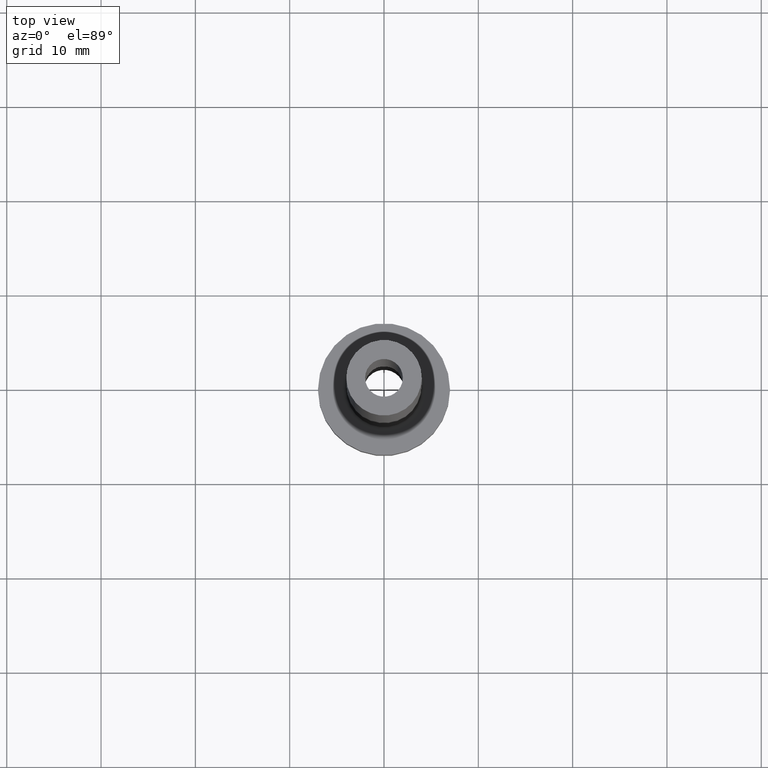
[diagram: clean part render]
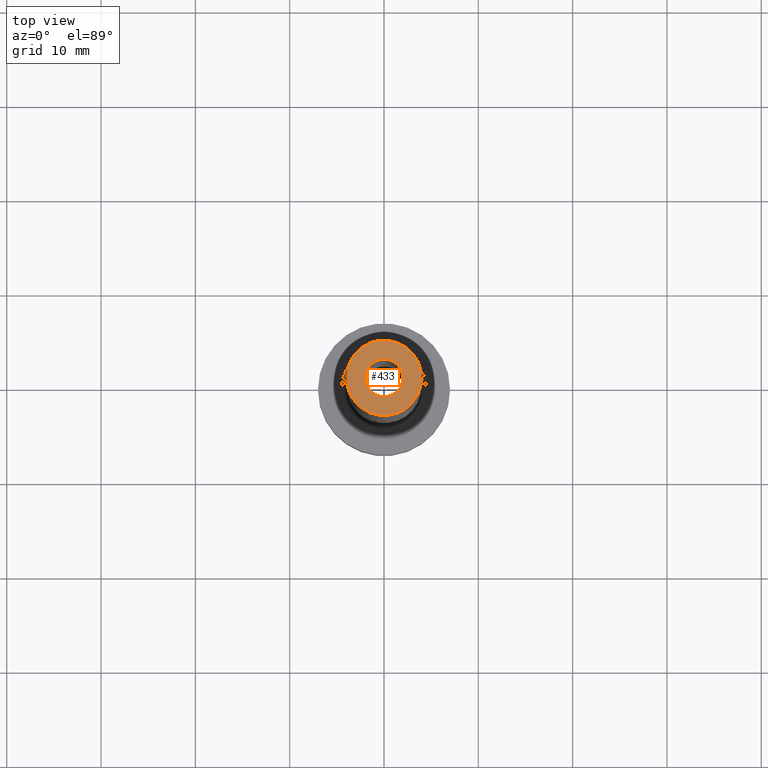
[diagram: same view with one face highlighted and labeled with its STEP entity id]
A machine part, top view. The second image highlights one B-rep face of the part: STEP entity #433.
In plain terms, the highlighted planar face has unit normal (0, 0, 1).
Its self-contained STEP definition (entity closure, byte-faithful):
#17 = ORIENTED_EDGE ( 'NONE', *, *, #345, .F. ) ;
#28 = AXIS2_PLACEMENT_3D ( 'NONE', #363, #152, #448 ) ;
#44 = AXIS2_PLACEMENT_3D ( 'NONE', #190, #184, #333 ) ;
#61 = VERTEX_POINT ( 'NONE', #341 ) ;
#68 = AXIS2_PLACEMENT_3D ( 'NONE', #278, #348, #124 ) ;
#74 = CARTESIAN_POINT ( 'NONE',  ( 0.000000000000000000, 0.000000000000000000, 75.00000000000001421 ) ) ;
#80 = AXIS2_PLACEMENT_3D ( 'NONE', #385, #426, #101 ) ;
#101 = DIRECTION ( 'NONE',  ( 1.000000000000000000, 0.000000000000000000, -0.000000000000000000 ) ) ;
#121 = ORIENTED_EDGE ( 'NONE', *, *, #338, .T. ) ;
#124 = DIRECTION ( 'NONE',  ( 1.000000000000000000, 0.000000000000000000, 0.000000000000000000 ) ) ;
#131 = ORIENTED_EDGE ( 'NONE', *, *, #395, .T. ) ;
#147 = CARTESIAN_POINT ( 'NONE',  ( -4.000000000000000000, 0.000000000000000000, 75.00000000000001421 ) ) ;
#152 = DIRECTION ( 'NONE',  ( 0.000000000000000000, 0.000000000000000000, 1.000000000000000000 ) ) ;
#162 = FACE_BOUND ( 'NONE', #260, .T. ) ;
#184 = DIRECTION ( 'NONE',  ( 0.000000000000000000, 0.000000000000000000, 1.000000000000000000 ) ) ;
#190 = CARTESIAN_POINT ( 'NONE',  ( 0.000000000000000000, 0.000000000000000000, 75.00000000000001421 ) ) ;
#211 = VERTEX_POINT ( 'NONE', #286 ) ;
#214 = CIRCLE ( 'NONE', #396, 4.000000000000000000 ) ;
#219 = CIRCLE ( 'NONE', #68, 2.000000000000000000 ) ;
#243 = PLANE ( 'NONE',  #80 ) ;
#260 = EDGE_LOOP ( 'NONE', ( #17, #308 ) ) ;
#263 = VERTEX_POINT ( 'NONE', #147 ) ;
#268 = DIRECTION ( 'NONE',  ( 0.000000000000000000, 0.000000000000000000, 1.000000000000000000 ) ) ;
#270 = EDGE_LOOP ( 'NONE', ( #121, #131 ) ) ;
#278 = CARTESIAN_POINT ( 'NONE',  ( 0.000000000000000000, 0.000000000000000000, 75.00000000000001421 ) ) ;
#286 = CARTESIAN_POINT ( 'NONE',  ( 2.000000000000000000, 2.449293598294705921E-16, 75.00000000000001421 ) ) ;
#296 = VERTEX_POINT ( 'NONE', #441 ) ;
#308 = ORIENTED_EDGE ( 'NONE', *, *, #423, .F. ) ;
#311 = FACE_OUTER_BOUND ( 'NONE', #270, .T. ) ;
#312 = CIRCLE ( 'NONE', #44, 2.000000000000000000 ) ;
#333 = DIRECTION ( 'NONE',  ( 1.000000000000000000, 0.000000000000000000, 0.000000000000000000 ) ) ;
#338 = EDGE_CURVE ( 'NONE', #263, #296, #214, .T. ) ;
#341 = CARTESIAN_POINT ( 'NONE',  ( -2.000000000000000000, 0.000000000000000000, 75.00000000000001421 ) ) ;
#345 = EDGE_CURVE ( 'NONE', #61, #211, #312, .T. ) ;
#348 = DIRECTION ( 'NONE',  ( 0.000000000000000000, 0.000000000000000000, 1.000000000000000000 ) ) ;
#363 = CARTESIAN_POINT ( 'NONE',  ( 0.000000000000000000, 0.000000000000000000, 75.00000000000001421 ) ) ;
#385 = CARTESIAN_POINT ( 'NONE',  ( 0.000000000000000000, 0.000000000000000000, 75.00000000000001421 ) ) ;
#387 = CIRCLE ( 'NONE', #28, 4.000000000000000000 ) ;
#395 = EDGE_CURVE ( 'NONE', #296, #263, #387, .T. ) ;
#396 = AXIS2_PLACEMENT_3D ( 'NONE', #74, #268, #435 ) ;
#423 = EDGE_CURVE ( 'NONE', #211, #61, #219, .T. ) ;
#426 = DIRECTION ( 'NONE',  ( 0.000000000000000000, 0.000000000000000000, 1.000000000000000000 ) ) ;
#433 = ADVANCED_FACE ( 'NONE', ( #162, #311 ), #243, .T. ) ;
#435 = DIRECTION ( 'NONE',  ( 1.000000000000000000, 0.000000000000000000, 0.000000000000000000 ) ) ;
#441 = CARTESIAN_POINT ( 'NONE',  ( 4.000000000000000000, 4.898587196589412829E-16, 75.00000000000001421 ) ) ;
#448 = DIRECTION ( 'NONE',  ( 1.000000000000000000, 0.000000000000000000, 0.000000000000000000 ) ) ;